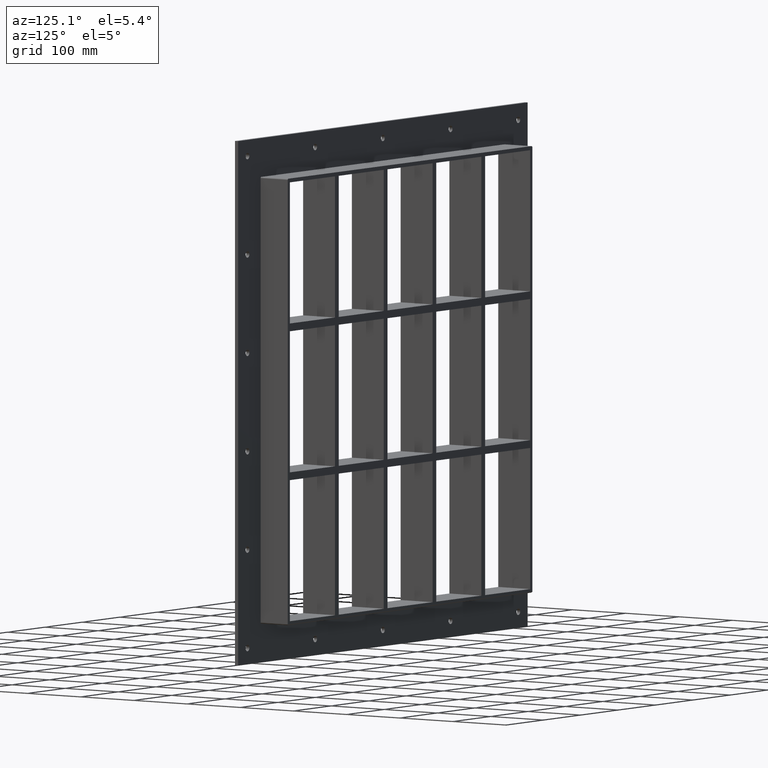
[diagram: clean part render]
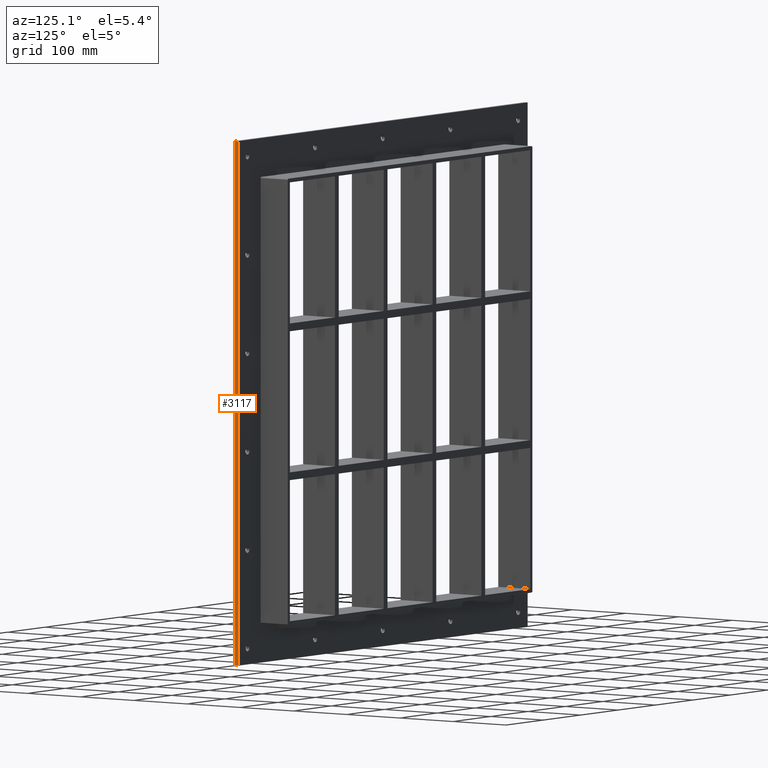
[diagram: same view with one face highlighted and labeled with its STEP entity id]
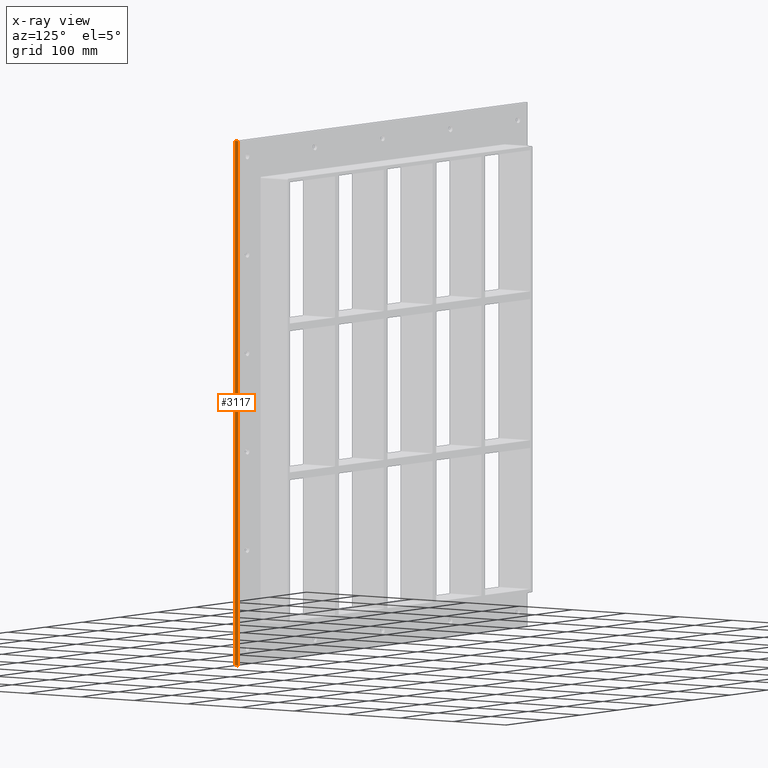
[diagram: x-ray of the same camera — body ghosted, the highlighted face saturated]
A machine part, auxiliary view. The second image highlights one B-rep face of the part: STEP entity #3117.
The next image is the same camera in x-ray: the body ghosted, the highlighted face saturated — about 0% of this face is hidden behind the body in this view.
In plain terms, the highlighted planar face has unit normal (1, 0, 0).
Its self-contained STEP definition (entity closure, byte-faithful):
#2741=CARTESIAN_POINT('',(387.25,6.000000000000001,405.00000000000006));
#2742=VERTEX_POINT('',#2741);
#2749=CARTESIAN_POINT('',(387.25,6.000000000000001,-405.00000000000006));
#2750=VERTEX_POINT('',#2749);
#2751=CARTESIAN_POINT('',(387.25,6.000000000000001,405.00000000000006));
#2752=DIRECTION('',(0.0,0.0,-1.0));
#2753=VECTOR('',#2752,810.00000000000011);
#2754=LINE('',#2751,#2753);
#2755=EDGE_CURVE('',#2742,#2750,#2754,.T.);
#2905=CARTESIAN_POINT('',(387.25,0.0,405.00000000000006));
#2906=VERTEX_POINT('',#2905);
#2921=CARTESIAN_POINT('',(387.25,0.0,-405.00000000000006));
#2922=VERTEX_POINT('',#2921);
#2929=CARTESIAN_POINT('',(387.25,0.0,405.00000000000006));
#2930=DIRECTION('',(0.0,0.0,-1.0));
#2931=VECTOR('',#2930,810.00000000000011);
#2932=LINE('',#2929,#2931);
#2933=EDGE_CURVE('',#2906,#2922,#2932,.T.);
#3092=CARTESIAN_POINT('',(387.25,0.0,-405.00000000000006));
#3093=DIRECTION('',(0.0,1.0,0.0));
#3094=VECTOR('',#3093,6.000000000000001);
#3095=LINE('',#3092,#3094);
#3096=EDGE_CURVE('',#2922,#2750,#3095,.T.);
#3101=CARTESIAN_POINT('',(387.25,0.0,405.00000000000006));
#3102=DIRECTION('',(1.0,0.0,0.0));
#3103=DIRECTION('',(0.0,0.0,-1.0));
#3104=AXIS2_PLACEMENT_3D('',#3101,#3102,#3103);
#3105=PLANE('',#3104);
#3106=ORIENTED_EDGE('',*,*,#2933,.T.);
#3107=ORIENTED_EDGE('',*,*,#3096,.T.);
#3108=ORIENTED_EDGE('',*,*,#2755,.F.);
#3109=CARTESIAN_POINT('',(387.25,0.0,405.00000000000006));
#3110=DIRECTION('',(0.0,1.0,0.0));
#3111=VECTOR('',#3110,6.000000000000001);
#3112=LINE('',#3109,#3111);
#3113=EDGE_CURVE('',#2906,#2742,#3112,.T.);
#3114=ORIENTED_EDGE('',*,*,#3113,.F.);
#3115=EDGE_LOOP('',(#3106,#3107,#3108,#3114));
#3116=FACE_OUTER_BOUND('',#3115,.T.);
#3117=ADVANCED_FACE('',(#3116),#3105,.T.);